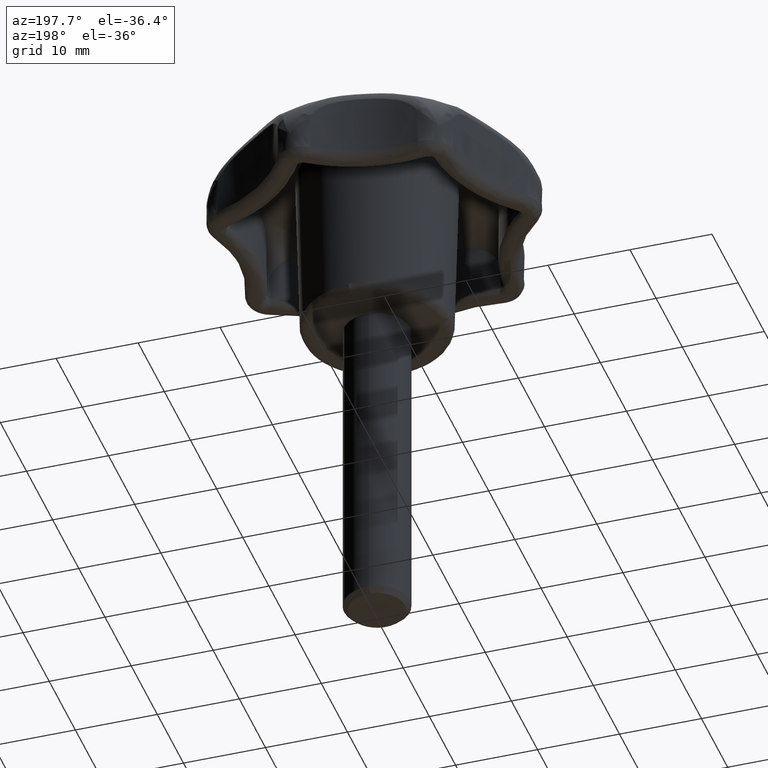
[diagram: clean part render]
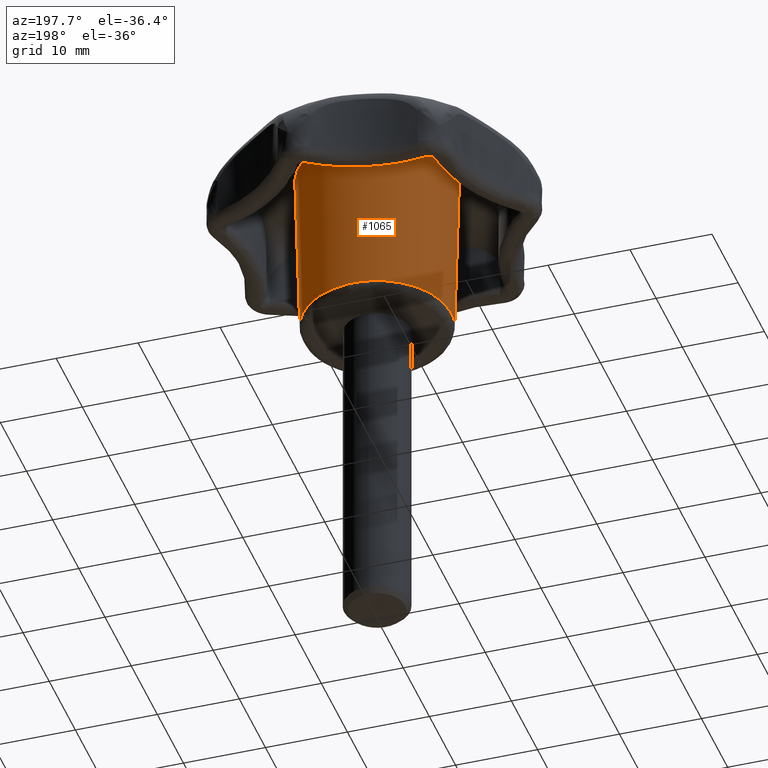
[diagram: same view with one face highlighted and labeled with its STEP entity id]
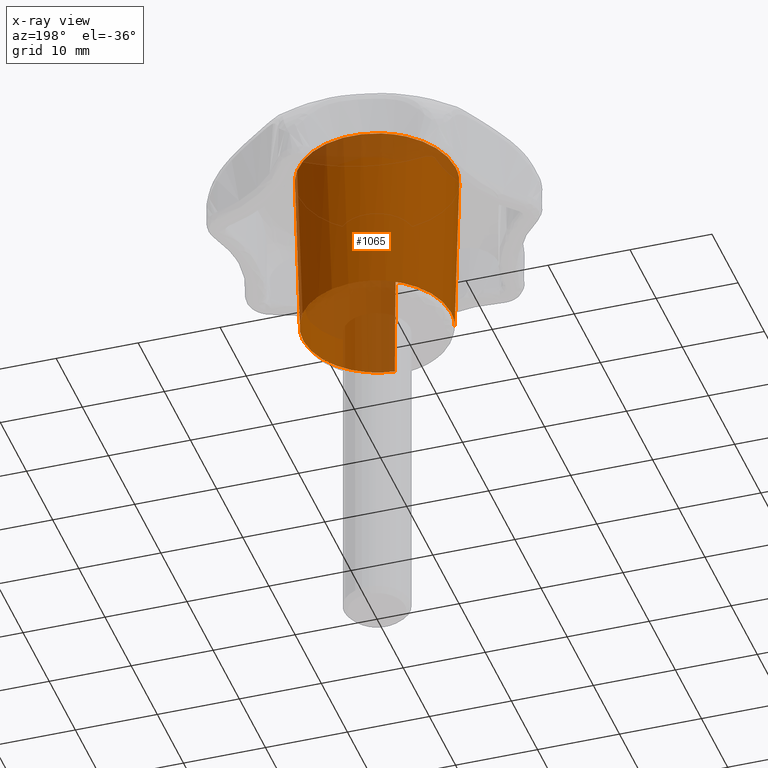
[diagram: x-ray of the same camera — body ghosted, the highlighted face saturated]
A machine part, auxiliary view. The second image highlights one B-rep face of the part: STEP entity #1065.
The next image is the same camera in x-ray: the body ghosted, the highlighted face saturated — about 29% of this face is hidden behind the body in this view.
In plain terms, the highlighted face is a freeform B-spline surface patch.
Its self-contained STEP definition (entity closure, byte-faithful):
#849=CARTESIAN_POINT('',(0.708117294782753,-8.997679572030760,0.973821906972202));
#850=VERTEX_POINT('',#849);
#851=CARTESIAN_POINT('',(-8.392495073948663,-3.320496088400812,0.973822023436165));
#852=VERTEX_POINT('',#851);
#868=CARTESIAN_POINT('',(0.750947101266560,-9.541687614171124,21.812961472348601));
#869=VERTEX_POINT('',#868);
#870=CARTESIAN_POINT('',(0.708117294782753,-8.997679572030760,0.973821906972202));
#871=CARTESIAN_POINT('',(0.750947101266560,-9.541687614171124,21.812961472348601));
#872=QUASI_UNIFORM_CURVE('',1,(#870,#871),.UNSPECIFIED.,.F.,.U.);
#873=EDGE_CURVE('',#850,#869,#872,.T.);
#875=CARTESIAN_POINT('',(-8.899904324477468,-3.521261711491423,21.812962523572160));
#876=VERTEX_POINT('',#875);
#892=CARTESIAN_POINT('',(-8.392495073948663,-3.320496088400812,0.973822023436165));
#893=CARTESIAN_POINT('',(-8.899904324477468,-3.521261711491423,21.812962523572160));
#894=QUASI_UNIFORM_CURVE('',1,(#892,#893),.UNSPECIFIED.,.F.,.U.);
#895=EDGE_CURVE('',#852,#876,#894,.T.);
#900=CARTESIAN_POINT('',(0.707062286065079,-8.984078167970619,0.452844505014494));
#901=CARTESIAN_POINT('',(9.691140454035699,-8.277015881905539,0.452844505014494));
#902=CARTESIAN_POINT('',(8.984078167970619,0.707062286065079,0.452844505014494));
#903=CARTESIAN_POINT('',(8.277015881905539,9.691140454035699,0.452844505014494));
#904=CARTESIAN_POINT('',(-0.707062286065079,8.984078167970619,0.452844505014494));
#905=CARTESIAN_POINT('',(-9.691140454035699,8.277015881905539,0.452844505014494));
#906=CARTESIAN_POINT('',(-8.984078167970619,-0.707062286065079,0.452844505014494));
#907=CARTESIAN_POINT('',(-8.877862490179718,-2.056660434267843,0.452844505014494));
#908=CARTESIAN_POINT('',(-8.379806780563627,-3.315484267041804,0.452844505014494));
#909=CARTESIAN_POINT('',(0.752044202285846,-9.555627604897143,22.346965756780371));
#910=CARTESIAN_POINT('',(10.307671807182990,-8.803583402611297,22.346965756780371));
#911=CARTESIAN_POINT('',(9.555627604897143,0.752044202285846,22.346965756780371));
#912=CARTESIAN_POINT('',(8.803583402611297,10.307671807182990,22.346965756780371));
#913=CARTESIAN_POINT('',(-0.752044202285846,9.555627604897143,22.346965756780371));
#914=CARTESIAN_POINT('',(-10.307671807182990,8.803583402611297,22.346965756780371));
#915=CARTESIAN_POINT('',(-9.555627604897143,-0.752044202285846,22.346965756780371));
#916=CARTESIAN_POINT('',(-9.442654693954530,-2.187501138364297,22.346965756780367));
#917=CARTESIAN_POINT('',(-8.912913656688023,-3.526408875058048,22.346965756780364));
#925=(BOUNDED_SURFACE()B_SPLINE_SURFACE(2,1,((#900,#909),(#901,#910),(#902,#911),(#903,#912),(#904,#913),(#905,#914),(#906,#915),(#907,#916),(#908,#917)),.UNSPECIFIED.,.F.,.F.,.U.)B_SPLINE_SURFACE_WITH_KNOTS((3,2,2,2,3),(2,2),(0.0,15.881238762750600,31.762477525501190,47.643716288251788,50.819964040801914),(0.0,21.901626366977052),.UNSPECIFIED.)GEOMETRIC_REPRESENTATION_ITEM()RATIONAL_B_SPLINE_SURFACE(((1.0,1.0),(0.707106781186548,0.707106781186548),(1.0,1.0),(0.707106781186548,0.707106781186548),(1.0,1.0),(0.707106781186548,0.707106781186548),(1.0,1.0),(0.941421356237310,0.941421356237310),(0.906274169979695,0.906274169979695)))REPRESENTATION_ITEM('')SURFACE());
#926=CARTESIAN_POINT('',(-9.025501000000000,0.0,0.973823000000000));
#927=VERTEX_POINT('',#926);
#928=CARTESIAN_POINT('',(-8.392495073948663,-3.320496088400811,0.973822023436164));
#929=CARTESIAN_POINT('',(-9.025501000000000,-1.720584887212481,0.973823000000000));
#930=CARTESIAN_POINT('',(-9.025501000000000,0.0,0.973823000000000));
#938=(BOUNDED_CURVE()B_SPLINE_CURVE(2,(#928,#929,#930),.UNSPECIFIED.,.F.,.U.)B_SPLINE_CURVE_WITH_KNOTS((3,3),(0.937532684874871,1.0),.UNSPECIFIED.)CURVE()GEOMETRIC_REPRESENTATION_ITEM()RATIONAL_B_SPLINE_CURVE((0.890203345670525,0.926814988009466,1.0))REPRESENTATION_ITEM(''));
#939=EDGE_CURVE('',#852,#927,#938,.T.);
#940=ORIENTED_EDGE('',*,*,#939,.F.);
#941=ORIENTED_EDGE('',*,*,#895,.T.);
#942=CARTESIAN_POINT('',(-9.571176065027853,0.0,21.812962799420230));
#943=VERTEX_POINT('',#942);
#944=CARTESIAN_POINT('',(-8.899904324477468,-3.521261711491423,21.812962523572164));
#945=CARTESIAN_POINT('',(-9.571179422104532,-1.824615855385609,21.812962704881876));
#946=CARTESIAN_POINT('',(-9.571176065027853,0.0,21.812962799420230));
#954=(BOUNDED_CURVE()B_SPLINE_CURVE(2,(#944,#945,#946),.UNSPECIFIED.,.F.,.U.)B_SPLINE_CURVE_WITH_KNOTS((3,3),(0.937532643539435,1.0),.UNSPECIFIED.)CURVE()GEOMETRIC_REPRESENTATION_ITEM()RATIONAL_B_SPLINE_CURVE((0.890203297217740,0.926814939581991,1.0))REPRESENTATION_ITEM(''));
#955=EDGE_CURVE('',#876,#943,#954,.T.);
#956=ORIENTED_EDGE('',*,*,#955,.T.);
#957=CARTESIAN_POINT('',(-3.381520993144484,8.953939580610378,21.812960324998439));
#958=VERTEX_POINT('',#957);
#959=CARTESIAN_POINT('',(-9.571176065027853,0.0,21.812962799420230));
#960=CARTESIAN_POINT('',(-9.571184082886846,6.616364861980105,21.812961562209338));
#961=CARTESIAN_POINT('',(-3.381520993144484,8.953939580610378,21.812960324998443));
#969=(BOUNDED_CURVE()B_SPLINE_CURVE(2,(#959,#960,#961),.UNSPECIFIED.,.F.,.U.)B_SPLINE_CURVE_WITH_KNOTS((3,3),(0.0,0.189999999983500),.UNSPECIFIED.)CURVE()GEOMETRIC_REPRESENTATION_ITEM()RATIONAL_B_SPLINE_CURVE((1.0,0.777401153721107,0.893152553756749))REPRESENTATION_ITEM(''));
#970=EDGE_CURVE('',#943,#958,#969,.T.);
#971=ORIENTED_EDGE('',*,*,#970,.T.);
#972=CARTESIAN_POINT('',(9.571192101157671,0.0,21.812960325022900));
#973=VERTEX_POINT('',#972);
#974=CARTESIAN_POINT('',(-3.381520993144484,8.953939580610378,21.812960324998446));
#975=CARTESIAN_POINT('',(-1.747096192349654,9.571192101157671,21.812960325022896));
#976=CARTESIAN_POINT('',(0.0,9.571192101157671,21.812960325022900));
#977=CARTESIAN_POINT('',(9.571192101157671,9.571192101157671,21.812960325022903));
#978=CARTESIAN_POINT('',(9.571192101157671,0.0,21.812960325022900));
#986=(BOUNDED_CURVE()B_SPLINE_CURVE(2,(#974,#975,#976,#977,#978),.UNSPECIFIED.,.F.,.U.)B_SPLINE_CURVE_WITH_KNOTS((3,2,3),(0.189999999983500,0.250000000000000,0.500000000000000),.UNSPECIFIED.)CURVE()GEOMETRIC_REPRESENTATION_ITEM()RATIONAL_B_SPLINE_CURVE((0.893152553756749,0.929705627465441,1.0,0.707106781186547,1.0))REPRESENTATION_ITEM(''));
#987=EDGE_CURVE('',#958,#973,#986,.T.);
#988=ORIENTED_EDGE('',*,*,#987,.T.);
#989=CARTESIAN_POINT('',(9.571192101157671,0.0,21.812960325022900));
#990=CARTESIAN_POINT('',(9.571192101157671,-8.847525802369102,21.812960325022900));
#991=CARTESIAN_POINT('',(0.750947101266560,-9.541687614171124,21.812961472348601));
#999=(BOUNDED_CURVE()B_SPLINE_CURVE(2,(#989,#990,#991),.UNSPECIFIED.,.F.,.U.)B_SPLINE_CURVE_WITH_KNOTS((3,3),(0.500000000000000,0.736331432563330),.UNSPECIFIED.)CURVE()GEOMETRIC_REPRESENTATION_ITEM()RATIONAL_B_SPLINE_CURVE((1.0,0.723120504038927,0.969723631501000))REPRESENTATION_ITEM(''));
#1000=EDGE_CURVE('',#973,#869,#999,.T.);
#1001=ORIENTED_EDGE('',*,*,#1000,.T.);
#1002=ORIENTED_EDGE('',*,*,#873,.F.);
#1003=CARTESIAN_POINT('',(9.025501000000000,0.0,0.973823000000000));
#1004=VERTEX_POINT('',#1003);
#1005=CARTESIAN_POINT('',(9.025501000000000,0.0,0.973823000000000));
#1006=CARTESIAN_POINT('',(9.025500998876685,-8.343101569797998,0.973822453486101));
#1007=CARTESIAN_POINT('',(0.708117294782753,-8.997679572030760,0.973821906972202));
#1015=(BOUNDED_CURVE()B_SPLINE_CURVE(2,(#1005,#1006,#1007),.UNSPECIFIED.,.F.,.U.)B_SPLINE_CURVE_WITH_KNOTS((3,3),(0.500000000000000,0.736331593080772),.UNSPECIFIED.)CURVE()GEOMETRIC_REPRESENTATION_ITEM()RATIONAL_B_SPLINE_CURVE((1.0,0.723120315981046,0.969723966489294))REPRESENTATION_ITEM(''));
#1016=EDGE_CURVE('',#1004,#850,#1015,.T.);
#1017=ORIENTED_EDGE('',*,*,#1016,.F.);
#1018=CARTESIAN_POINT('',(0.629377508266294,9.003529649666660,0.973823008436556));
#1019=VERTEX_POINT('',#1018);
#1020=CARTESIAN_POINT('',(0.629377508266294,9.003529649666660,0.973823008436556));
#1021=CARTESIAN_POINT('',(9.025501000000000,8.416612247529534,0.973823000000000));
#1022=CARTESIAN_POINT('',(9.025501000000000,0.0,0.973823000000000));
#1030=(BOUNDED_CURVE()B_SPLINE_CURVE(2,(#1020,#1021,#1022),.UNSPECIFIED.,.F.,.U.)B_SPLINE_CURVE_WITH_KNOTS((3,3),(0.262166313465114,0.500000000000000),.UNSPECIFIED.)CURVE()GEOMETRIC_REPRESENTATION_ITEM()RATIONAL_B_SPLINE_CURVE((0.972879876386541,0.721360504034110,1.0))REPRESENTATION_ITEM(''));
#1031=EDGE_CURVE('',#1019,#1004,#1030,.T.);
#1032=ORIENTED_EDGE('',*,*,#1031,.F.);
#1033=CARTESIAN_POINT('',(-9.024788046441159,0.113414801315562,0.973823008450425));
#1034=VERTEX_POINT('',#1033);
#1035=CARTESIAN_POINT('',(-9.024788046441159,0.113414801315562,0.973823008450425));
#1036=CARTESIAN_POINT('',(-8.912789910832641,9.025501000000000,0.973823000000000));
#1037=CARTESIAN_POINT('',(0.0,9.025501000000000,0.973823000000000));
#1038=CARTESIAN_POINT('',(0.315072260242853,9.025501000000000,0.973823000000000));
#1039=CARTESIAN_POINT('',(0.629377508266294,9.003529649666660,0.973823008436556));
#1047=(BOUNDED_CURVE()B_SPLINE_CURVE(2,(#1035,#1036,#1037,#1038,#1039),.UNSPECIFIED.,.F.,.U.)B_SPLINE_CURVE_WITH_KNOTS((3,2,3),(0.002215704079411,0.250000000000000,0.262166313465114),.UNSPECIFIED.)CURVE()GEOMETRIC_REPRESENTATION_ITEM()RATIONAL_B_SPLINE_CURVE((0.994854295641390,0.709702639985575,1.0,0.985746277152437,0.972879876386541))REPRESENTATION_ITEM(''));
#1048=EDGE_CURVE('',#1034,#1019,#1047,.T.);
#1049=ORIENTED_EDGE('',*,*,#1048,.F.);
#1050=CARTESIAN_POINT('',(-9.025501000000000,0.0,0.973823000000000));
#1051=CARTESIAN_POINT('',(-9.025500999999998,0.056709641573311,0.973823000000000));
#1052=CARTESIAN_POINT('',(-9.024788046441159,0.113414801315562,0.973823008450425));
#1060=(BOUNDED_CURVE()B_SPLINE_CURVE(2,(#1050,#1051,#1052),.UNSPECIFIED.,.F.,.U.)B_SPLINE_CURVE_WITH_KNOTS((3,3),(0.0,0.002215704079411),.UNSPECIFIED.)CURVE()GEOMETRIC_REPRESENTATION_ITEM()RATIONAL_B_SPLINE_CURVE((1.0,0.997404141200972,0.994854295641390))REPRESENTATION_ITEM(''));
#1061=EDGE_CURVE('',#927,#1034,#1060,.T.);
#1062=ORIENTED_EDGE('',*,*,#1061,.F.);
#1063=EDGE_LOOP('',(#940,#941,#956,#971,#988,#1001,#1002,#1017,#1032,#1049,#1062));
#1064=FACE_OUTER_BOUND('',#1063,.T.);
#1065=ADVANCED_FACE('',(#1064),#925,.T.);